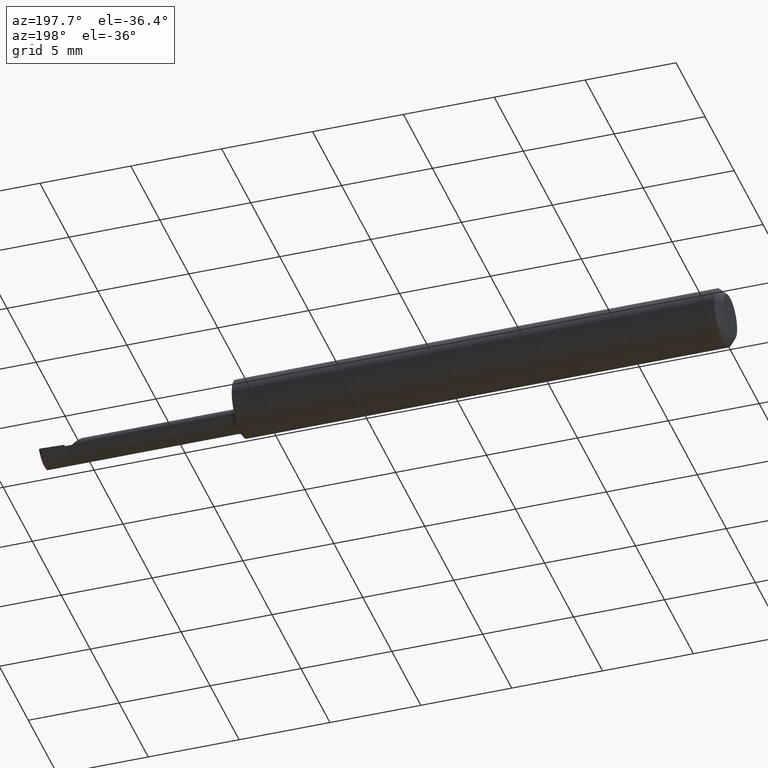
[diagram: clean part render]
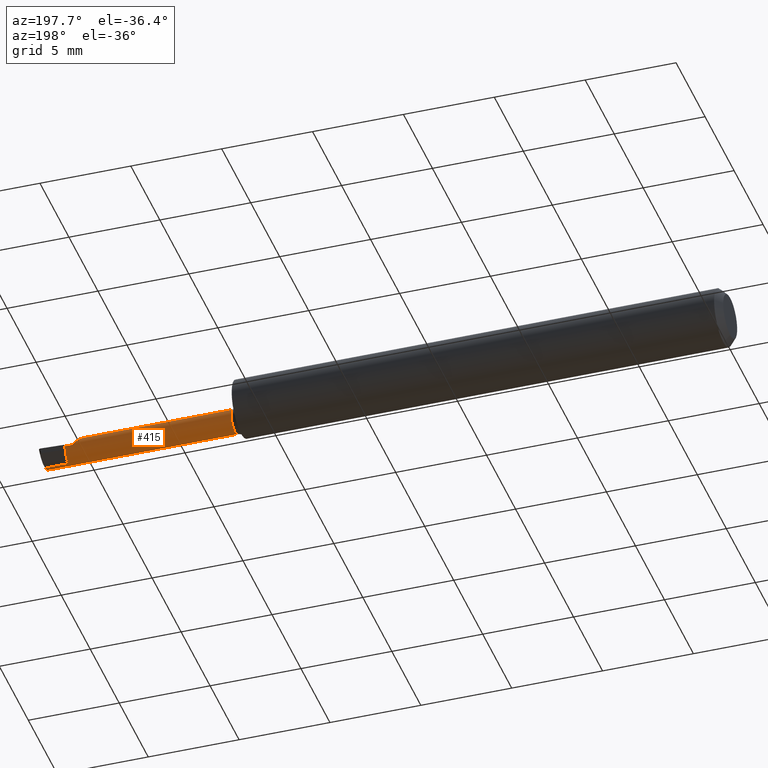
[diagram: same view with one face highlighted and labeled with its STEP entity id]
A machine part, auxiliary view. The second image highlights one B-rep face of the part: STEP entity #415.
In plain terms, the highlighted cylindrical surface (edge-blend (fillet) strip) has radius 0.6642 mm, axis along (-1, 0, -0).
Its self-contained STEP definition (entity closure, byte-faithful):
#6 = EDGE_CURVE ( 'NONE', #529, #19, #409, .T. ) ;
#9 = CARTESIAN_POINT ( 'NONE',  ( 1.397264918367745690, -0.01235000000000002068, 0.03273508163225391510 ) ) ;
#10 =( BOUNDED_CURVE ( )  B_SPLINE_CURVE ( 3, ( #16, #68, #9, #574 ),
 .UNSPECIFIED., .F., .T. ) 
 B_SPLINE_CURVE_WITH_KNOTS ( ( 4, 4 ),
 ( 5.257763968430261059, 7.853981633974482790 ),
 .UNSPECIFIED. ) 
 CURVE ( )  GEOMETRIC_REPRESENTATION_ITEM ( )  RATIONAL_B_SPLINE_CURVE ( ( 1.000000000000000000, 0.5128803992295699610, 0.5128803992295699610, 1.000000000000000000 ) ) 
 REPRESENTATION_ITEM ( '' )  );
#16 = CARTESIAN_POINT ( 'NONE',  ( 1.416434982561967981, -0.06085649350649352529, 0.01356501743803199302 ) ) ;
#19 = VERTEX_POINT ( 'NONE', #399 ) ;
#22 = DIRECTION ( 'NONE',  ( -1.000000000000000000, 5.691349986800549142E-18, -0.0000000000000000000 ) ) ;
#24 = DIRECTION ( 'NONE',  ( 0.0000000000000000000, -1.000000000000000000, 0.0000000000000000000 ) ) ;
#38 = LINE ( 'NONE', #435, #292 ) ;
#39 = EDGE_CURVE ( 'NONE', #19, #357, #280, .T. ) ;
#41 = ORIENTED_EDGE ( 'NONE', *, *, #136, .T. ) ;
#59 = ORIENTED_EDGE ( 'NONE', *, *, #6, .T. ) ;
#68 = CARTESIAN_POINT ( 'NONE',  ( 1.388448686579328406, -0.04387553927410643012, 0.04155131342067137912 ) ) ;
#80 = CYLINDRICAL_SURFACE ( 'NONE', #192, 0.02614999999999998229 ) ;
#102 = VECTOR ( 'NONE', #530, 39.37007874015748143 ) ;
#116 = CARTESIAN_POINT ( 'NONE',  ( 1.495893833867097289, -0.03849999999999999256, -0.02614999999999999963 ) ) ;
#118 = CARTESIAN_POINT ( 'NONE',  ( 1.085000000000000187, -0.06085649350649354611, -0.01356501743803189067 ) ) ;
#130 = ORIENTED_EDGE ( 'NONE', *, *, #176, .T. ) ;
#135 = VERTEX_POINT ( 'NONE', #248 ) ;
#136 = EDGE_CURVE ( 'NONE', #555, #529, #10, .T. ) ;
#152 = EDGE_CURVE ( 'NONE', #331, #135, #276, .T. ) ;
#176 = EDGE_CURVE ( 'NONE', #331, #224, #220, .T. ) ;
#180 = FACE_OUTER_BOUND ( 'NONE', #309, .T. ) ;
#192 = AXIS2_PLACEMENT_3D ( 'NONE', #582, #440, #538 ) ;
#201 = DIRECTION ( 'NONE',  ( 0.0000000000000000000, -1.000000000000000000, 0.0000000000000000000 ) ) ;
#204 = AXIS2_PLACEMENT_3D ( 'NONE', #497, #22, #24 ) ;
#210 = DIRECTION ( 'NONE',  ( -1.000000000000000000, 5.691349986800549142E-18, -0.0000000000000000000 ) ) ;
#211 = CARTESIAN_POINT ( 'NONE',  ( 1.495648902069280251, -0.04785356799146874007, -0.02614999999999998576 ) ) ;
#220 = LINE ( 'NONE', #533, #102 ) ;
#221 = ORIENTED_EDGE ( 'NONE', *, *, #246, .F. ) ;
#224 = VERTEX_POINT ( 'NONE', #118 ) ;
#230 = CARTESIAN_POINT ( 'NONE',  ( 1.416434982561967981, -0.06085649350649352529, 0.01356501743803199302 ) ) ;
#236 = ORIENTED_EDGE ( 'NONE', *, *, #152, .F. ) ;
#241 = CARTESIAN_POINT ( 'NONE',  ( 1.496854179736618162, -0.06085649350649351141, -0.01356501743803198955 ) ) ;
#246 = EDGE_CURVE ( 'NONE', #135, #357, #376, .T. ) ;
#248 = CARTESIAN_POINT ( 'NONE',  ( 1.495893833867097289, -0.03849999999999999256, -0.02614999999999999963 ) ) ;
#250 = CARTESIAN_POINT ( 'NONE',  ( 1.085000000000000187, -0.03849999999999999256, 0.0000000000000000000 ) ) ;
#276 =( BOUNDED_CURVE ( )  B_SPLINE_CURVE ( 3, ( #336, #340, #211, #116 ),
 .UNSPECIFIED., .F., .F. ) 
 B_SPLINE_CURVE_WITH_KNOTS ( ( 4, 4 ),
 ( 5.467813412710585297, 6.493234751459907805 ),
 .UNSPECIFIED. ) 
 CURVE ( )  GEOMETRIC_REPRESENTATION_ITEM ( )  RATIONAL_B_SPLINE_CURVE ( ( 1.000000000000000000, 0.9142786772072530876, 0.9142786772072530876, 1.000000000000000000 ) ) 
 REPRESENTATION_ITEM ( '' )  );
#280 = CIRCLE ( 'NONE', #204, 0.02614999999999999963 ) ;
#286 = DIRECTION ( 'NONE',  ( 1.000000000000000000, -5.691349986800549142E-18, 0.0000000000000000000 ) ) ;
#291 = EDGE_CURVE ( 'NONE', #318, #224, #550, .T. ) ;
#292 = VECTOR ( 'NONE', #492, 39.37007874015748143 ) ;
#298 = CARTESIAN_POINT ( 'NONE',  ( 1.488288021548567090E-19, -0.01235000000000001548, 1.836970198721027715E-16 ) ) ;
#309 = EDGE_LOOP ( 'NONE', ( #236, #130, #373, #570, #41, #59, #479, #221 ) ) ;
#318 = VERTEX_POINT ( 'NONE', #591 ) ;
#331 = VERTEX_POINT ( 'NONE', #241 ) ;
#336 = CARTESIAN_POINT ( 'NONE',  ( 1.496854179736618162, -0.06085649350649351141, -0.01356501743803198955 ) ) ;
#340 = CARTESIAN_POINT ( 'NONE',  ( 1.495999030862416035, -0.05600443565134659990, -0.02156168979228885799 ) ) ;
#357 = VERTEX_POINT ( 'NONE', #499 ) ;
#366 = CARTESIAN_POINT ( 'NONE',  ( 1.429999999999999938, -0.01235000000000007446, 8.572527594031471957E-18 ) ) ;
#373 = ORIENTED_EDGE ( 'NONE', *, *, #291, .F. ) ;
#376 = LINE ( 'NONE', #456, #419 ) ;
#399 = CARTESIAN_POINT ( 'NONE',  ( 1.445000000000000062, -0.01235000000000000160, 1.836970198721029194E-16 ) ) ;
#409 = LINE ( 'NONE', #298, #539 ) ;
#415 = ADVANCED_FACE ( 'NONE', ( #180 ), #80, .T. ) ;
#419 = VECTOR ( 'NONE', #210, 39.37007874015748143 ) ;
#434 = AXIS2_PLACEMENT_3D ( 'NONE', #250, #549, #201 ) ;
#435 = CARTESIAN_POINT ( 'NONE',  ( 1.265000000000000124, -0.06085649350649351141, 0.01356501743803198955 ) ) ;
#440 = DIRECTION ( 'NONE',  ( -1.000000000000000000, 5.691349986800549142E-18, -0.0000000000000000000 ) ) ;
#456 = CARTESIAN_POINT ( 'NONE',  ( 1.500000000000000444, -0.03849999999999999256, -0.02614999999999999963 ) ) ;
#468 = EDGE_CURVE ( 'NONE', #318, #555, #38, .T. ) ;
#479 = ORIENTED_EDGE ( 'NONE', *, *, #39, .T. ) ;
#492 = DIRECTION ( 'NONE',  ( 1.000000000000000000, -5.691349986800549142E-18, 0.0000000000000000000 ) ) ;
#497 = CARTESIAN_POINT ( 'NONE',  ( 1.445000000000000062, -0.03849999999999999256, 0.0000000000000000000 ) ) ;
#499 = CARTESIAN_POINT ( 'NONE',  ( 1.445000000000000062, -0.03849999999999999256, -0.02614999999999999963 ) ) ;
#529 = VERTEX_POINT ( 'NONE', #366 ) ;
#530 = DIRECTION ( 'NONE',  ( -1.000000000000000000, 5.691349986800549142E-18, -0.0000000000000000000 ) ) ;
#533 = CARTESIAN_POINT ( 'NONE',  ( 1.265000000000000124, -0.06085649350649351141, -0.01356501743803198955 ) ) ;
#538 = DIRECTION ( 'NONE',  ( -5.691349986800548372E-18, -1.000000000000000000, 0.0000000000000000000 ) ) ;
#539 = VECTOR ( 'NONE', #286, 39.37007874015748143 ) ;
#549 = DIRECTION ( 'NONE',  ( -1.000000000000000000, 5.691349986800549142E-18, -0.0000000000000000000 ) ) ;
#550 = CIRCLE ( 'NONE', #434, 0.02614999999999995453 ) ;
#555 = VERTEX_POINT ( 'NONE', #230 ) ;
#570 = ORIENTED_EDGE ( 'NONE', *, *, #468, .T. ) ;
#574 = CARTESIAN_POINT ( 'NONE',  ( 1.429999999999999938, -0.01235000000000007446, 8.572527594031471957E-18 ) ) ;
#582 = CARTESIAN_POINT ( 'NONE',  ( 0.0000000000000000000, -0.03849999999999998562, 0.0000000000000000000 ) ) ;
#591 = CARTESIAN_POINT ( 'NONE',  ( 1.085000000000000187, -0.06085649350649354611, 0.01356501743803188893 ) ) ;